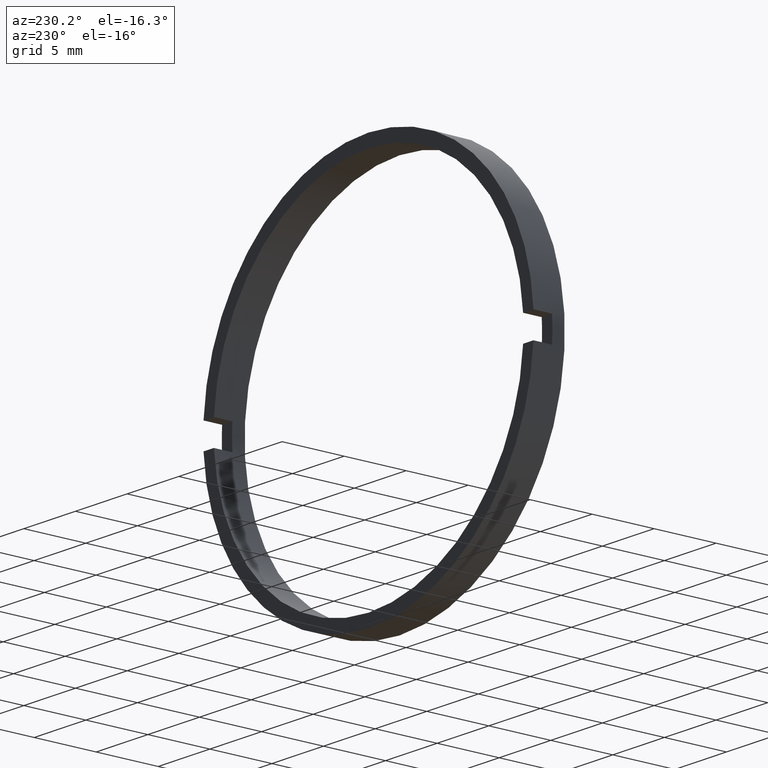
[diagram: clean part render]
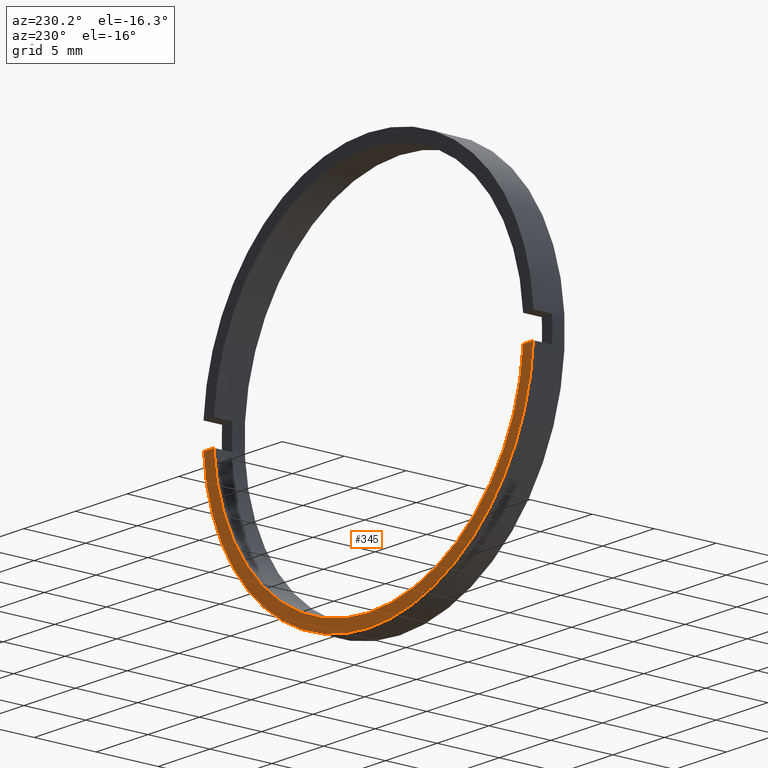
[diagram: same view with one face highlighted and labeled with its STEP entity id]
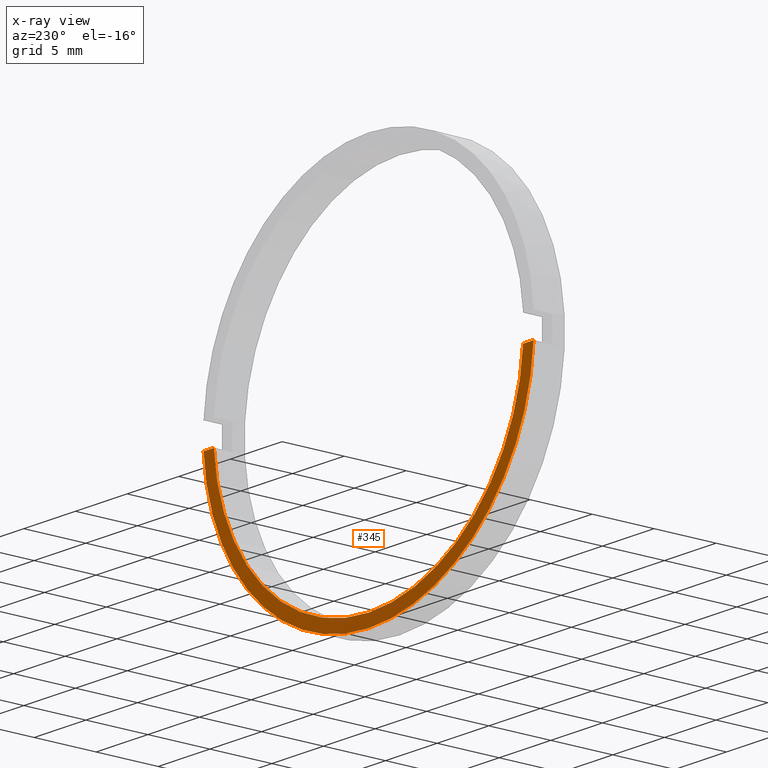
[diagram: x-ray of the same camera — body ghosted, the highlighted face saturated]
A machine part, auxiliary view. The second image highlights one B-rep face of the part: STEP entity #345.
The next image is the same camera in x-ray: the body ghosted, the highlighted face saturated — about 0% of this face is hidden behind the body in this view.
In plain terms, the highlighted planar face has unit normal (0, -1, 0).
Its self-contained STEP definition (entity closure, byte-faithful):
#8 = VERTEX_POINT ( 'NONE', #55 ) ;
#19 = DIRECTION ( 'NONE',  ( 0.0000000000000000000, 0.0000000000000000000, 1.000000000000000000 ) ) ;
#21 = CIRCLE ( 'NONE', #331, 15.00000000000000700 ) ;
#31 = ORIENTED_EDGE ( 'NONE', *, *, #241, .F. ) ;
#38 = AXIS2_PLACEMENT_3D ( 'NONE', #243, #323, #59 ) ;
#51 = CARTESIAN_POINT ( 'NONE',  ( 1.836970198721030800E-015, -1.964249787179434000, -15.00000000000000700 ) ) ;
#55 = CARTESIAN_POINT ( 'NONE',  ( 15.96871942267130600, -1.964249787179430900, -1.000000000000000000 ) ) ;
#57 = ORIENTED_EDGE ( 'NONE', *, *, #162, .F. ) ;
#59 = DIRECTION ( 'NONE',  ( 0.0000000000000000000, 0.0000000000000000000, 1.000000000000000000 ) ) ;
#65 = LINE ( 'NONE', #454, #468 ) ;
#80 = CARTESIAN_POINT ( 'NONE',  ( 1.959434878635766300E-015, -1.964249787179434000, -16.00000000000000700 ) ) ;
#82 = ORIENTED_EDGE ( 'NONE', *, *, #125, .T. ) ;
#91 = CIRCLE ( 'NONE', #38, 15.00000000000000700 ) ;
#105 = DIRECTION ( 'NONE',  ( -0.0000000000000000000, 1.000000000000000000, -0.0000000000000000000 ) ) ;
#112 = CIRCLE ( 'NONE', #494, 16.00000000000000700 ) ;
#115 = VERTEX_POINT ( 'NONE', #488 ) ;
#117 = CARTESIAN_POINT ( 'NONE',  ( -14.96662954709577100, -1.964249787179434000, -0.9999999999999995600 ) ) ;
#125 = EDGE_CURVE ( 'NONE', #8, #397, #275, .T. ) ;
#149 = ORIENTED_EDGE ( 'NONE', *, *, #170, .F. ) ;
#162 = EDGE_CURVE ( 'NONE', #115, #432, #91, .T. ) ;
#164 = VECTOR ( 'NONE', #318, 1000.000000000000000 ) ;
#170 = EDGE_CURVE ( 'NONE', #374, #253, #452, .T. ) ;
#217 = DIRECTION ( 'NONE',  ( -1.000000000000000000, -0.0000000000000000000, -0.0000000000000000000 ) ) ;
#241 = EDGE_CURVE ( 'NONE', #8, #115, #65, .T. ) ;
#243 = CARTESIAN_POINT ( 'NONE',  ( 0.0000000000000000000, -1.964249787179434000, 0.0000000000000000000 ) ) ;
#253 = VERTEX_POINT ( 'NONE', #286 ) ;
#256 = DIRECTION ( 'NONE',  ( 0.0000000000000000000, -1.000000000000000000, 0.0000000000000000000 ) ) ;
#259 = CARTESIAN_POINT ( 'NONE',  ( 15.00000000000000700, -1.964249787179430900, 0.0000000000000000000 ) ) ;
#266 = DIRECTION ( 'NONE',  ( 0.0000000000000000000, 0.0000000000000000000, 1.000000000000000000 ) ) ;
#275 = CIRCLE ( 'NONE', #431, 16.00000000000000700 ) ;
#286 = CARTESIAN_POINT ( 'NONE',  ( -15.96871942267132400, -1.964249787179430900, -1.000000000000000000 ) ) ;
#309 = DIRECTION ( 'NONE',  ( -0.0000000000000000000, 1.000000000000000000, -0.0000000000000000000 ) ) ;
#316 = CARTESIAN_POINT ( 'NONE',  ( -26.85254027261461800, -1.964249787179430900, -1.000000000000000000 ) ) ;
#318 = DIRECTION ( 'NONE',  ( -1.000000000000000000, -0.0000000000000000000, -0.0000000000000000000 ) ) ;
#319 = AXIS2_PLACEMENT_3D ( 'NONE', #259, #256, #425 ) ;
#323 = DIRECTION ( 'NONE',  ( -0.0000000000000000000, 1.000000000000000000, -0.0000000000000000000 ) ) ;
#331 = AXIS2_PLACEMENT_3D ( 'NONE', #471, #473, #380 ) ;
#345 = ADVANCED_FACE ( 'NONE', ( #346 ), #506, .F. ) ;
#346 = FACE_OUTER_BOUND ( 'NONE', #376, .T. ) ;
#347 = CARTESIAN_POINT ( 'NONE',  ( 0.0000000000000000000, -1.964249787179434000, 0.0000000000000000000 ) ) ;
#374 = VERTEX_POINT ( 'NONE', #117 ) ;
#375 = EDGE_CURVE ( 'NONE', #432, #374, #21, .T. ) ;
#376 = EDGE_LOOP ( 'NONE', ( #82, #489, #149, #439, #57, #31 ) ) ;
#380 = DIRECTION ( 'NONE',  ( 0.0000000000000000000, 0.0000000000000000000, 1.000000000000000000 ) ) ;
#397 = VERTEX_POINT ( 'NONE', #80 ) ;
#414 = EDGE_CURVE ( 'NONE', #397, #253, #112, .T. ) ;
#416 = CARTESIAN_POINT ( 'NONE',  ( 0.0000000000000000000, -1.964249787179434000, 0.0000000000000000000 ) ) ;
#425 = DIRECTION ( 'NONE',  ( 0.0000000000000000000, -0.0000000000000000000, -1.000000000000000000 ) ) ;
#431 = AXIS2_PLACEMENT_3D ( 'NONE', #416, #105, #19 ) ;
#432 = VERTEX_POINT ( 'NONE', #51 ) ;
#439 = ORIENTED_EDGE ( 'NONE', *, *, #375, .F. ) ;
#452 = LINE ( 'NONE', #316, #164 ) ;
#454 = CARTESIAN_POINT ( 'NONE',  ( -26.85254027261461800, -1.964249787179430900, -1.000000000000000000 ) ) ;
#468 = VECTOR ( 'NONE', #217, 1000.000000000000000 ) ;
#471 = CARTESIAN_POINT ( 'NONE',  ( 0.0000000000000000000, -1.964249787179434000, 0.0000000000000000000 ) ) ;
#473 = DIRECTION ( 'NONE',  ( -0.0000000000000000000, 1.000000000000000000, -0.0000000000000000000 ) ) ;
#488 = CARTESIAN_POINT ( 'NONE',  ( 14.96662954709577100, -1.964249787179434000, -0.9999999999999995600 ) ) ;
#489 = ORIENTED_EDGE ( 'NONE', *, *, #414, .T. ) ;
#494 = AXIS2_PLACEMENT_3D ( 'NONE', #347, #309, #266 ) ;
#506 = PLANE ( 'NONE',  #319 ) ;